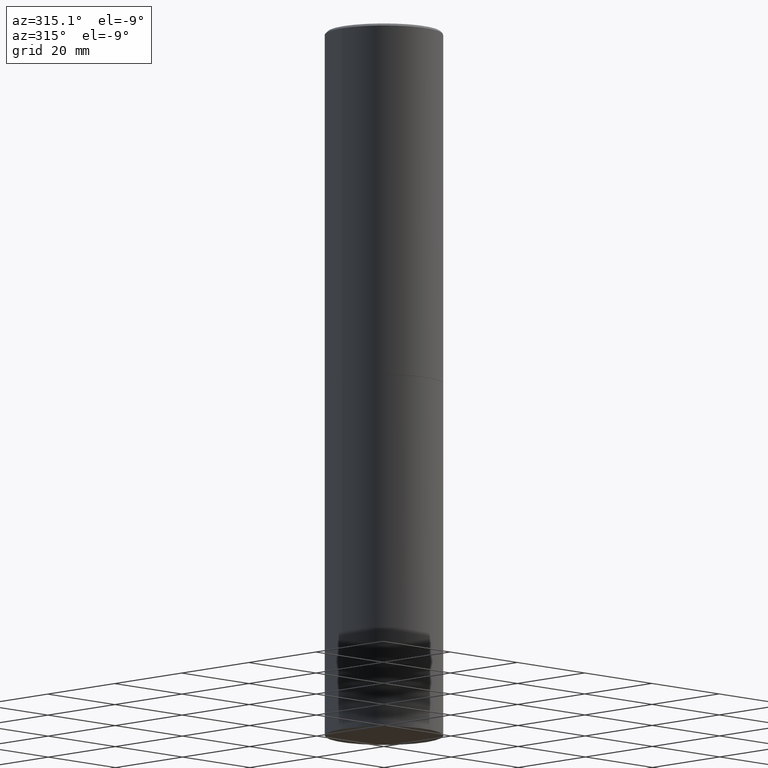
[diagram: clean part render]
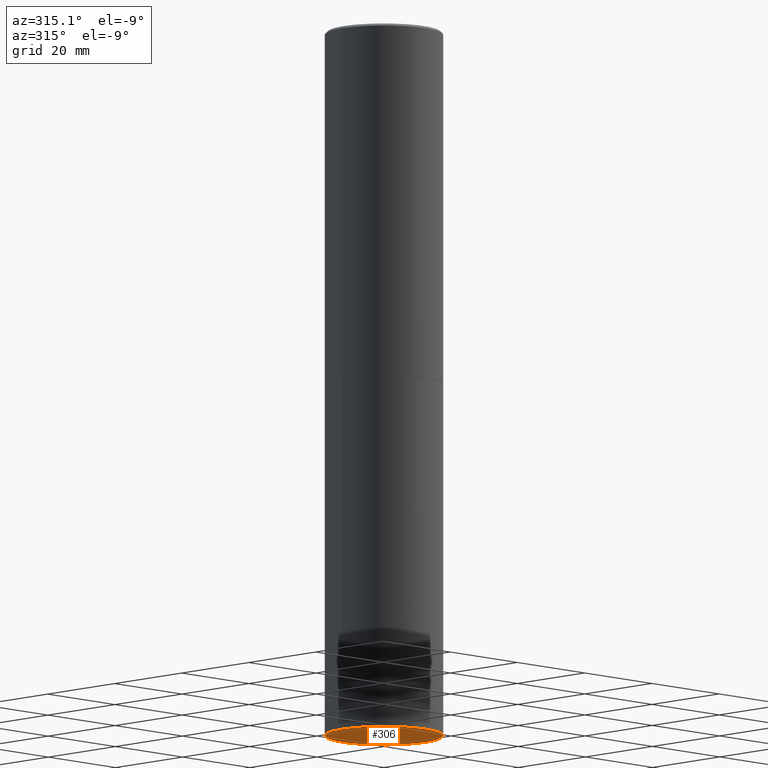
[diagram: same view with one face highlighted and labeled with its STEP entity id]
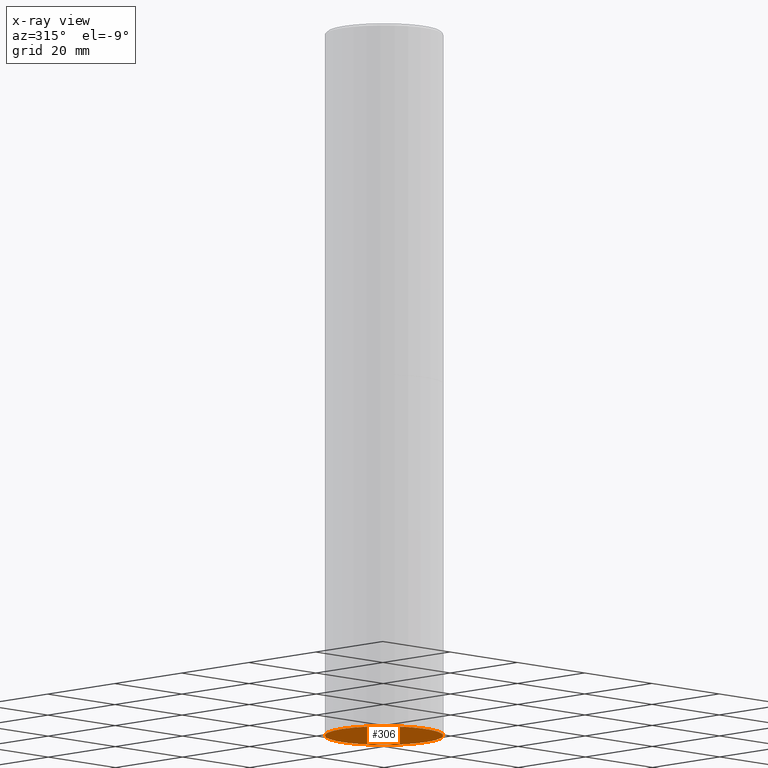
[diagram: x-ray of the same camera — body ghosted, the highlighted face saturated]
A machine part, auxiliary view. The second image highlights one B-rep face of the part: STEP entity #306.
The next image is the same camera in x-ray: the body ghosted, the highlighted face saturated — about 0% of this face is hidden behind the body in this view.
In plain terms, the highlighted planar face has unit normal (0, -0, -1).
Its self-contained STEP definition (entity closure, byte-faithful):
#7 = CARTESIAN_POINT ( 'NONE',  ( 1.444171603492632270E-28, -2.061894304653819197E-14, -5.905499999999999972 ) ) ;
#39 = CIRCLE ( 'NONE', #225, 0.4921499999999999764 ) ;
#49 = EDGE_LOOP ( 'NONE', ( #140, #220 ) ) ;
#52 = AXIS2_PLACEMENT_3D ( 'NONE', #112, #258, #57 ) ;
#57 = DIRECTION ( 'NONE',  ( -1.000000000000000000, 6.982962677686265922E-15, -4.876176775795935793E-29 ) ) ;
#63 = AXIS2_PLACEMENT_3D ( 'NONE', #346, #176, #205 ) ;
#70 = EDGE_CURVE ( 'NONE', #189, #360, #39, .T. ) ;
#84 = EDGE_CURVE ( 'NONE', #360, #189, #232, .T. ) ;
#112 = CARTESIAN_POINT ( 'NONE',  ( 3.436665081823440533E-15, 0.4921499999999793262, -5.905500000000001748 ) ) ;
#140 = ORIENTED_EDGE ( 'NONE', *, *, #70, .F. ) ;
#141 = PLANE ( 'NONE',  #52 ) ;
#151 = DIRECTION ( 'NONE',  ( 1.000000000000000000, -6.982962677686265922E-15, 0.000000000000000000 ) ) ;
#176 = DIRECTION ( 'NONE',  ( -2.445468806185136597E-29, 3.491481338843145583E-15, 1.000000000000000000 ) ) ;
#179 = CARTESIAN_POINT ( 'NONE',  ( -0.4921499999999999764, -1.196718392382684217E-14, -5.905499999999999972 ) ) ;
#186 = FACE_OUTER_BOUND ( 'NONE', #49, .T. ) ;
#189 = VERTEX_POINT ( 'NONE', #291 ) ;
#205 = DIRECTION ( 'NONE',  ( 1.000000000000000000, -6.982962677686265922E-15, 0.000000000000000000 ) ) ;
#220 = ORIENTED_EDGE ( 'NONE', *, *, #84, .F. ) ;
#225 = AXIS2_PLACEMENT_3D ( 'NONE', #7, #316, #151 ) ;
#232 = CIRCLE ( 'NONE', #63, 0.4921499999999999764 ) ;
#258 = DIRECTION ( 'NONE',  ( 2.438088387897960049E-29, -3.491481338843145188E-15, -1.000000000000000000 ) ) ;
#291 = CARTESIAN_POINT ( 'NONE',  ( 0.4921499999999999764, -2.405560812836148932E-14, -5.905499999999999972 ) ) ;
#306 = ADVANCED_FACE ( 'NONE', ( #186 ), #141, .T. ) ;
#316 = DIRECTION ( 'NONE',  ( -2.445468806185136597E-29, 3.491481338843145583E-15, 1.000000000000000000 ) ) ;
#346 = CARTESIAN_POINT ( 'NONE',  ( 1.444171603492632270E-28, -2.061894304653819197E-14, -5.905499999999999972 ) ) ;
#360 = VERTEX_POINT ( 'NONE', #179 ) ;